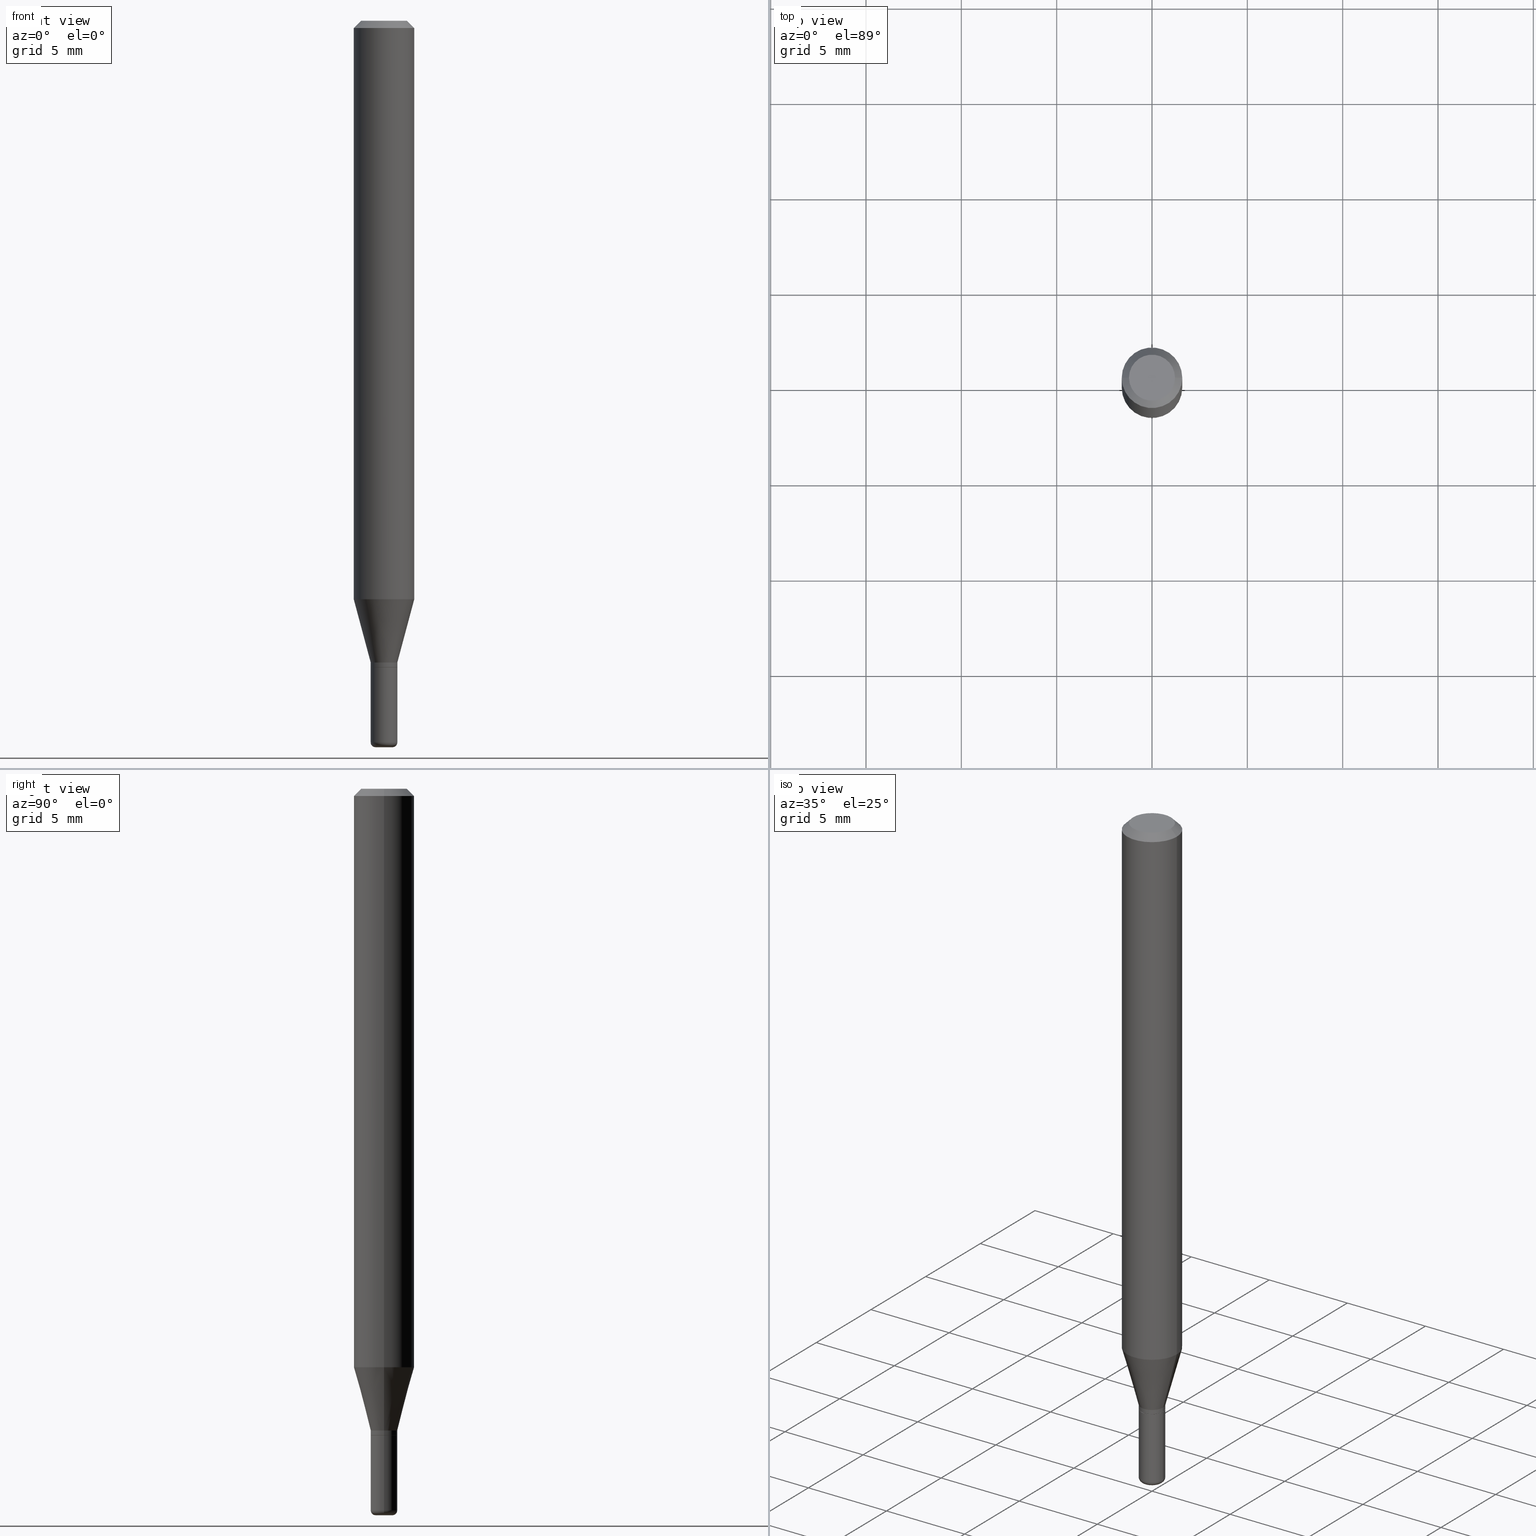
[diagram: canonical four-view strip — front | top / right | iso, engineering-drawing reading convention]
A machine part, canonical four-view strip (front | top / right | iso — engineering-drawing reading convention). The complete STEP part file that produces these views, byte-faithful:
ISO-10303-21;
HEADER;
FILE_DESCRIPTION (( 'STEP AP203' ),
    '1' );
FILE_NAME ('08530.STEP',
    '2024-02-29T19:42:34',
    ( '' ),
    ( '' ),
    'SwSTEP 2.0',
    'SolidWorks 2023',
    '' );
FILE_SCHEMA (( 'CONFIG_CONTROL_DESIGN' ));
ENDSEC;

DATA;
#1 = CIRCLE ( 'NONE', #142, 0.02699999999999996847 ) ;
#2 = CARTESIAN_POINT ( 'NONE',  ( 0.06250000000000000000, -4.811533449433669144E-16, -0.01499999999999970281 ) ) ;
#3 = UNCERTAINTY_MEASURE_WITH_UNIT (LENGTH_MEASURE( 1.000000000000000082E-05 ), #262, 'distance_accuracy_value', 'NONE');
#4 = ADVANCED_FACE ( 'NONE', ( #64 ), #509, .T. ) ;
#5 = DIRECTION ( 'NONE',  ( -2.445468806185136597E-29, 3.491481338843145583E-15, 1.000000000000000000 ) ) ;
#6 = ORIENTED_EDGE ( 'NONE', *, *, #227, .F. ) ;
#7 = DIRECTION ( 'NONE',  ( -2.445468806185136597E-29, 3.491481338843145583E-15, 1.000000000000000000 ) ) ;
#8 = ORIENTED_EDGE ( 'NONE', *, *, #268, .F. ) ;
#9 = DIRECTION ( 'NONE',  ( -2.445468806185136597E-29, 3.491481338843145583E-15, 1.000000000000000000 ) ) ;
#10 = EDGE_CURVE ( 'NONE', #364, #489, #157, .T. ) ;
#11 = CARTESIAN_POINT ( 'NONE',  ( -0.02699999999999996847, -4.466631821526261489E-15, -1.335000000000000187 ) ) ;
#12 = ORIENTED_EDGE ( 'NONE', *, *, #10, .T. ) ;
#13 = DIRECTION ( 'NONE',  ( -2.445468806185136597E-29, 3.491481338843145583E-15, 1.000000000000000000 ) ) ;
#14 = VERTEX_POINT ( 'NONE', #304 ) ;
#15 = CARTESIAN_POINT ( 'NONE',  ( 0.06250000000000000000, -4.606584440064116240E-15, -1.194378221735089340 ) ) ;
#16 = CIRCLE ( 'NONE', #269, 0.06250000000000000000 ) ;
#17 = CARTESIAN_POINT ( 'NONE',  ( 3.643748521215853910E-29, -5.202307194876288105E-15, -1.490000000000000213 ) ) ;
#18 = AXIS2_PLACEMENT_3D ( 'NONE', #370, #264, #417 ) ;
#19 = CYLINDRICAL_SURFACE ( 'NONE', #18, 0.02749999999999996197 ) ;
#20 = ORIENTED_EDGE ( 'NONE', *, *, #365, .T. ) ;
#21 = MANIFOLD_SOLID_BREP ( 'Body-Move/Copy2[1]', #437 ) ;
#22 = DIRECTION ( 'NONE',  ( -2.445468806185136597E-29, 3.491481338843145583E-15, 1.000000000000000000 ) ) ;
#23 = ORIENTED_EDGE ( 'NONE', *, *, #339, .F. ) ;
#24 = CARTESIAN_POINT ( 'NONE',  ( 0.02699999999999996847, -4.849667579653128607E-15, -1.335000000000000187 ) ) ;
#25 = VERTEX_POINT ( 'NONE', #55 ) ;
#26 = AXIS2_PLACEMENT_3D ( 'NONE', #116, #392, #516 ) ;
#27 = ORIENTED_EDGE ( 'NONE', *, *, #484, .T. ) ;
#28 = SECURITY_CLASSIFICATION_LEVEL ( 'unclassified' ) ;
#29 = DIRECTION ( 'NONE',  ( -1.000000000000000000, 7.105427357600964782E-15, 0.000000000000000000 ) ) ;
#30 = COORDINATED_UNIVERSAL_TIME_OFFSET ( 5, 0, .BEHIND. ) ;
#31 = DIRECTION ( 'NONE',  ( 1.000000000000000000, -6.982962677686265922E-15, 4.876176775795935793E-29 ) ) ;
#32 = AXIS2_PLACEMENT_3D ( 'NONE', #38, #114, #467 ) ;
#33 = APPROVAL_PERSON_ORGANIZATION ( #110, #261, #390 ) ;
#34 = AXIS2_PLACEMENT_3D ( 'NONE', #302, #93, #251 ) ;
#35 = COORDINATED_UNIVERSAL_TIME_OFFSET ( 5, 0, .BEHIND. ) ;
#36 = CARTESIAN_POINT ( 'NONE',  ( 3.668203209277632395E-31, -5.237222008264614861E-17, -0.01499999999999970281 ) ) ;
#37 = PERSON_AND_ORGANIZATION ( #497, #420 ) ;
#38 = CARTESIAN_POINT ( 'NONE',  ( 3.240246168195306775E-29, -4.626212773967169051E-15, -1.325000000000000178 ) ) ;
#39 = DIRECTION ( 'NONE',  ( 2.445468806185136597E-29, -3.491481338843145583E-15, -1.000000000000000000 ) ) ;
#40 = ADVANCED_FACE ( 'NONE', ( #214 ), #446, .T. ) ;
#41 = CARTESIAN_POINT ( 'NONE',  ( -0.06250000000000000000, 4.440892098500626162E-16, -3.074334431409316114E-30 ) ) ;
#42 = EDGE_CURVE ( 'NONE', #101, #175, #248, .T. ) ;
#43 = ORIENTED_EDGE ( 'NONE', *, *, #76, .F. ) ;
#44 = LINE ( 'NONE', #2, #313 ) ;
#45 = EDGE_LOOP ( 'NONE', ( #447, #129, #27, #491 ) ) ;
#46 = CARTESIAN_POINT ( 'NONE',  ( 3.240246168195306775E-29, -4.626212773967169051E-15, -1.325000000000000178 ) ) ;
#47 = ORIENTED_EDGE ( 'NONE', *, *, #267, .T. ) ;
#48 = AXIS2_PLACEMENT_3D ( 'NONE', #75, #152, #391 ) ;
#49 = VECTOR ( 'NONE', #438, 39.37007874015748854 ) ;
#50 = LINE ( 'NONE', #200, #448 ) ;
#51 = ORIENTED_EDGE ( 'NONE', *, *, #433, .T. ) ;
#52 = LINE ( 'NONE', #246, #216 ) ;
#53 = EDGE_LOOP ( 'NONE', ( #330, #343, #415, #296 ) ) ;
#54 =( LENGTH_UNIT ( ) NAMED_UNIT ( * ) SI_UNIT ( $, .METRE. ) );
#55 = CARTESIAN_POINT ( 'NONE',  ( -0.06250000000000000000, -3.726060062858662743E-15, -1.194378221735089340 ) ) ;
#56 = DIRECTION ( 'NONE',  ( -6.982962677686266711E-15, -1.000000000000000000, 3.491481338843145583E-15 ) ) ;
#57 = CIRCLE ( 'NONE', #367, 0.06250000000000000000 ) ;
#58 = CARTESIAN_POINT ( 'NONE',  ( 3.668203209277704895E-29, -5.237222008264718177E-15, -1.500000000000000222 ) ) ;
#59 = AXIS2_PLACEMENT_3D ( 'NONE', #393, #290, #127 ) ;
#60 = DIRECTION ( 'NONE',  ( 1.000000000000000000, -6.982962677686258822E-15, 0.000000000000000000 ) ) ;
#61 = EDGE_LOOP ( 'NONE', ( #80, #165, #172, #201 ) ) ;
#62 = ORIENTED_EDGE ( 'NONE', *, *, #266, .T. ) ;
#63 = CALENDAR_DATE ( 2024, 29, 2 ) ;
#64 = FACE_OUTER_BOUND ( 'NONE', #440, .T. ) ;
#65 = AXIS2_PLACEMENT_3D ( 'NONE', #349, #135, #99 ) ;
#66 = CIRCLE ( 'NONE', #82, 0.04750000000000000749 ) ;
#67 = MECHANICAL_CONTEXT ( 'NONE', #162, 'mechanical' ) ;
#68 = DIRECTION ( 'NONE',  ( -2.445468806185136597E-29, 3.491481338843145583E-15, 1.000000000000000000 ) ) ;
#69 = PERSON_AND_ORGANIZATION ( #497, #420 ) ;
#70 = CARTESIAN_POINT ( 'NONE',  ( 0.01750000000000000167, -5.359423855124228160E-15, -1.500000000000000222 ) ) ;
#71 = FACE_OUTER_BOUND ( 'NONE', #461, .T. ) ;
#72 = CIRCLE ( 'NONE', #375, 0.04750000000000000749 ) ;
#73 = SHAPE_DEFINITION_REPRESENTATION ( #466, #278 ) ;
#74 = LINE ( 'NONE', #518, #133 ) ;
#75 = CARTESIAN_POINT ( 'NONE',  ( 3.240246168195306775E-29, -4.626212773967169051E-15, -1.325000000000000178 ) ) ;
#76 = EDGE_CURVE ( 'NONE', #337, #139, #486, .T. ) ;
#77 = EDGE_CURVE ( 'NONE', #453, #418, #57, .T. ) ;
#78 = ADVANCED_FACE ( 'NONE', ( #184 ), #381, .T. ) ;
#79 = DIRECTION ( 'NONE',  ( -2.445468806185136877E-29, 3.491481338843145188E-15, 1.000000000000000000 ) ) ;
#80 = ORIENTED_EDGE ( 'NONE', *, *, #311, .F. ) ;
#81 = CIRCLE ( 'NONE', #374, 0.02749999999999997238 ) ;
#82 = AXIS2_PLACEMENT_3D ( 'NONE', #211, #346, #414 ) ;
#83 = FACE_OUTER_BOUND ( 'NONE', #495, .T. ) ;
#84 = ORIENTED_EDGE ( 'NONE', *, *, #276, .T. ) ;
#85 = DIRECTION ( 'NONE',  ( -2.445468806185136597E-29, 3.491481338843145583E-15, 1.000000000000000000 ) ) ;
#86 = ADVANCED_FACE ( 'NONE', ( #508 ), #105, .T. ) ;
#87 = ORIENTED_EDGE ( 'NONE', *, *, #455, .F. ) ;
#88 = CARTESIAN_POINT ( 'NONE',  ( 3.643748521215853910E-29, -5.202307194876288105E-15, -1.490000000000000213 ) ) ;
#89 = VERTEX_POINT ( 'NONE', #428 ) ;
#90 = CC_DESIGN_APPROVAL ( #303, ( #185 ) ) ;
#91 = LINE ( 'NONE', #405, #241 ) ;
#92 = EDGE_CURVE ( 'NONE', #418, #453, #189, .T. ) ;
#93 = DIRECTION ( 'NONE',  ( 2.438088387897960049E-29, -3.491481338843145188E-15, -1.000000000000000000 ) ) ;
#94 = EDGE_LOOP ( 'NONE', ( #8, #20, #395, #328 ) ) ;
#95 = ADVANCED_FACE ( 'NONE', ( #71 ), #233, .T. ) ;
#96 = DIRECTION ( 'NONE',  ( 1.000000000000000000, -6.982962677686279332E-15, 0.000000000000000000 ) ) ;
#97 = CARTESIAN_POINT ( 'NONE',  ( 3.264700856257157760E-29, -4.661127587355599122E-15, -1.335000000000000187 ) ) ;
#98 = AXIS2_PLACEMENT_3D ( 'NONE', #36, #505, #236 ) ;
#99 = DIRECTION ( 'NONE',  ( 1.000000000000000000, -6.982962677686254878E-15, 0.000000000000000000 ) ) ;
#100 = CYLINDRICAL_SURFACE ( 'NONE', #158, 0.06250000000000000000 ) ;
#101 = VERTEX_POINT ( 'NONE', #351 ) ;
#102 = ADVANCED_FACE ( 'NONE', ( #315 ), #237, .F. ) ;
#103 = DIRECTION ( 'NONE',  ( 0.7071067811866199593, -2.468850131083015945E-15, 0.7071067811864750752 ) ) ;
#104 = ORIENTED_EDGE ( 'NONE', *, *, #311, .T. ) ;
#105 = CYLINDRICAL_SURFACE ( 'NONE', #196, 0.02749999999999997238 ) ;
#106 = VECTOR ( 'NONE', #366, 39.37007874015748143 ) ;
#107 = CIRCLE ( 'NONE', #431, 0.06250000000000000000 ) ;
#108 = APPROVAL_ROLE ( '' ) ;
#109 = CARTESIAN_POINT ( 'NONE',  ( -0.06250000000000000000, 3.840629472727455270E-16, -0.01499999999999970281 ) ) ;
#110 = PERSON_AND_ORGANIZATION ( #497, #420 ) ;
#111 = DIRECTION ( 'NONE',  ( 1.000000000000000000, -6.982962677686270655E-15, 0.000000000000000000 ) ) ;
#112 = ADVANCED_FACE ( 'NONE', ( #323 ), #358, .T. ) ;
#113 = CALENDAR_DATE ( 2024, 29, 2 ) ;
#114 = DIRECTION ( 'NONE',  ( -2.445468806185136597E-29, 3.491481338843145583E-15, 1.000000000000000000 ) ) ;
#115 = LOCAL_TIME ( 14, 42, 34.00000000000000000, #155 ) ;
#116 = CARTESIAN_POINT ( 'NONE',  ( 3.668203209277632395E-31, -5.237222008264614861E-17, -0.01499999999999970281 ) ) ;
#117 = EDGE_CURVE ( 'NONE', #25, #499, #16, .T. ) ;
#118 = DIRECTION ( 'NONE',  ( 1.000000000000000000, -6.982962677686258822E-15, 0.000000000000000000 ) ) ;
#119 = EDGE_CURVE ( 'NONE', #308, #453, #228, .T. ) ;
#120 = CARTESIAN_POINT ( 'NONE',  ( 3.264700856257157760E-29, -4.661127587355599122E-15, -1.335000000000000187 ) ) ;
#121 = ORIENTED_EDGE ( 'NONE', *, *, #76, .T. ) ;
#122 = CLOSED_SHELL ( 'NONE', ( #293, #112, #150, #316, #4, #78, #449, #128, #514, #207, #373, #469 ) ) ;
#123 = LOCAL_TIME ( 14, 42, 34.00000000000000000, #35 ) ;
#124 = EDGE_CURVE ( 'NONE', #101, #89, #457, .T. ) ;
#125 = DIRECTION ( 'NONE',  ( 1.000000000000000000, -6.982962677686266711E-15, 4.876176775795935793E-29 ) ) ;
#126 = EDGE_LOOP ( 'NONE', ( #408, #43 ) ) ;
#127 = DIRECTION ( 'NONE',  ( 1.000000000000000000, -6.982962677686265922E-15, 4.876176775795935793E-29 ) ) ;
#128 = ADVANCED_FACE ( 'NONE', ( #472 ), #255, .T. ) ;
#129 = ORIENTED_EDGE ( 'NONE', *, *, #42, .T. ) ;
#130 = CC_DESIGN_PERSON_AND_ORGANIZATION_ASSIGNMENT ( #321, #186, ( #331 ) ) ;
#131 = DIRECTION ( 'NONE',  ( 1.000000000000000000, -6.982962677686254878E-15, 0.000000000000000000 ) ) ;
#132 = ORIENTED_EDGE ( 'NONE', *, *, #163, .T. ) ;
#133 = VECTOR ( 'NONE', #425, 39.37007874015748854 ) ;
#134 = DIRECTION ( 'NONE',  ( 1.000000000000000000, -6.982962677686266711E-15, 4.876176775795935793E-29 ) ) ;
#135 = DIRECTION ( 'NONE',  ( -2.445468806185136597E-29, 3.491481338843145583E-15, 1.000000000000000000 ) ) ;
#136 = EDGE_CURVE ( 'NONE', #204, #499, #74, .T. ) ;
#137 =( NAMED_UNIT ( * ) PLANE_ANGLE_UNIT ( ) SI_UNIT ( $, .RADIAN. ) );
#138 = ORIENTED_EDGE ( 'NONE', *, *, #267, .F. ) ;
#139 = VERTEX_POINT ( 'NONE', #354 ) ;
#140 = CARTESIAN_POINT ( 'NONE',  ( -0.02750000000000000014, -4.736318138781917467E-15, -1.335000000000000187 ) ) ;
#141 = AXIS2_PLACEMENT_3D ( 'NONE', #477, #432, #29 ) ;
#142 = AXIS2_PLACEMENT_3D ( 'NONE', #97, #13, #501 ) ;
#143 = ORIENTED_EDGE ( 'NONE', *, *, #212, .F. ) ;
#144 = CARTESIAN_POINT ( 'NONE',  ( 3.643748521215853910E-29, -5.202307194876288105E-15, -1.490000000000000213 ) ) ;
#145 = VERTEX_POINT ( 'NONE', #388 ) ;
#146 = FACE_OUTER_BOUND ( 'NONE', #126, .T. ) ;
#147 = DATE_AND_TIME ( #350, #324 ) ;
#148 = CARTESIAN_POINT ( 'NONE',  ( 0.000000000000000000, 0.000000000000000000, 0.000000000000000000 ) ) ;
#149 = EDGE_CURVE ( 'NONE', #14, #364, #193, .T. ) ;
#150 = ADVANCED_FACE ( 'NONE', ( #480 ), #419, .T. ) ;
#151 = PERSON_AND_ORGANIZATION_ROLE ( 'design_owner' ) ;
#152 = DIRECTION ( 'NONE',  ( -2.445468806185136597E-29, 3.491481338843145583E-15, 1.000000000000000000 ) ) ;
#153 = COORDINATED_UNIVERSAL_TIME_OFFSET ( 5, 0, .BEHIND. ) ;
#154 = CARTESIAN_POINT ( 'NONE',  ( 3.264700856257157760E-29, -4.661127587355599122E-15, -1.335000000000000187 ) ) ;
#155 = COORDINATED_UNIVERSAL_TIME_OFFSET ( 5, 0, .BEHIND. ) ;
#156 = DIRECTION ( 'NONE',  ( -2.445468806185136597E-29, 3.491481338843145583E-15, 1.000000000000000000 ) ) ;
#157 = CIRCLE ( 'NONE', #288, 0.02750000000000000014 ) ;
#158 = AXIS2_PLACEMENT_3D ( 'NONE', #171, #22, #134 ) ;
#159 = DIRECTION ( 'NONE',  ( -2.445468806185136597E-29, 3.491481338843145583E-15, 1.000000000000000000 ) ) ;
#160 = DIRECTION ( 'NONE',  ( -0.7071067811866199593, 7.493145998870616062E-15, 0.7071067811864750752 ) ) ;
#161 = ORIENTED_EDGE ( 'NONE', *, *, #276, .F. ) ;
#162 = APPLICATION_CONTEXT ( 'configuration controlled 3d designs of mechanical parts and assemblies' ) ;
#163 = EDGE_CURVE ( 'NONE', #204, #145, #386, .T. ) ;
#164 = CARTESIAN_POINT ( 'NONE',  ( -0.04750000000000000749, 3.578768372314221353E-16, 2.731847993664239060E-16 ) ) ;
#165 = ORIENTED_EDGE ( 'NONE', *, *, #229, .T. ) ;
#166 = LOCAL_TIME ( 14, 42, 34.00000000000000000, #30 ) ;
#167 = LINE ( 'NONE', #443, #49 ) ;
#168 = ORIENTED_EDGE ( 'NONE', *, *, #326, .T. ) ;
#169 = DIRECTION ( 'NONE',  ( 1.000000000000000000, -6.982962677686270655E-15, 0.000000000000000000 ) ) ;
#170 = ORIENTED_EDGE ( 'NONE', *, *, #227, .T. ) ;
#171 = CARTESIAN_POINT ( 'NONE',  ( 0.000000000000000000, 0.000000000000000000, 0.000000000000000000 ) ) ;
#172 = ORIENTED_EDGE ( 'NONE', *, *, #92, .T. ) ;
#173 = AXIS2_PLACEMENT_3D ( 'NONE', #120, #361, #242 ) ;
#174 = LENGTH_MEASURE_WITH_UNIT ( LENGTH_MEASURE( 0.02539999999999999897 ), #54 );
#175 = VERTEX_POINT ( 'NONE', #70 ) ;
#176 = ORIENTED_EDGE ( 'NONE', *, *, #149, .T. ) ;
#177 = CARTESIAN_POINT ( 'NONE',  ( -0.02749999999999996197, 1.953992523340272809E-16, -1.352707149820097254E-30 ) ) ;
#178 = DIRECTION ( 'NONE',  ( -2.445468806185136597E-29, 3.491481338843145583E-15, 1.000000000000000000 ) ) ;
#179 = FACE_OUTER_BOUND ( 'NONE', #285, .T. ) ;
#180 = TOROIDAL_SURFACE ( 'NONE', #225, 0.01750000000000000167, 0.009999999999999946432 ) ;
#181 = ORIENTED_EDGE ( 'NONE', *, *, #266, .F. ) ;
#182 = APPROVAL_STATUS ( 'not_yet_approved' ) ;
#183 = ORIENTED_EDGE ( 'NONE', *, *, #136, .F. ) ;
#184 = FACE_OUTER_BOUND ( 'NONE', #94, .T. ) ;
#185 = PRODUCT_DEFINITION ( 'UNKNOWN', '', #257, #195 ) ;
#186 = PERSON_AND_ORGANIZATION_ROLE ( 'classification_officer' ) ;
#187 = AXIS2_PLACEMENT_3D ( 'NONE', #154, #156, #513 ) ;
#188 = DIRECTION ( 'NONE',  ( -2.438088387897960049E-29, 3.491481338843145188E-15, 1.000000000000000000 ) ) ;
#189 = CIRCLE ( 'NONE', #26, 0.06250000000000000000 ) ;
#190 = CIRCLE ( 'NONE', #479, 0.02749999999999995851 ) ;
#191 = DATE_AND_TIME ( #113, #166 ) ;
#192 = CARTESIAN_POINT ( 'NONE',  ( 3.582686580359766038E-29, -5.359686688179453325E-15, -1.500000000000000222 ) ) ;
#193 = LINE ( 'NONE', #356, #411 ) ;
#194 = DIRECTION ( 'NONE',  ( -2.445468806185136877E-29, 3.491481338843145188E-15, 1.000000000000000000 ) ) ;
#195 = DESIGN_CONTEXT ( 'detailed design', #209, 'design' ) ;
#196 = AXIS2_PLACEMENT_3D ( 'NONE', #148, #271, #474 ) ;
#197 = AXIS2_PLACEMENT_3D ( 'NONE', #292, #286, #125 ) ;
#198 = DIRECTION ( 'NONE',  ( 1.000000000000000000, -6.982962677686251722E-15, 0.000000000000000000 ) ) ;
#199 = ORIENTED_EDGE ( 'NONE', *, *, #476, .T. ) ;
#200 = CARTESIAN_POINT ( 'NONE',  ( 0.02749999999999996197, -1.920314736363720486E-16, 1.340948613343880486E-30 ) ) ;
#201 = ORIENTED_EDGE ( 'NONE', *, *, #119, .F. ) ;
#202 = CC_DESIGN_DATE_AND_TIME_ASSIGNMENT ( #512, #352, ( #185 ) ) ;
#203 = CARTESIAN_POINT ( 'NONE',  ( 3.264700856257157760E-29, -4.661127587355599122E-15, -1.335000000000000187 ) ) ;
#204 = VERTEX_POINT ( 'NONE', #231 ) ;
#205 = AXIS2_PLACEMENT_3D ( 'NONE', #192, #188, #31 ) ;
#206 = CIRCLE ( 'NONE', #289, 0.02749999999999994463 ) ;
#207 = ADVANCED_FACE ( 'NONE', ( #146 ), #283, .F. ) ;
#208 = FACE_OUTER_BOUND ( 'NONE', #291, .T. ) ;
#209 = APPLICATION_CONTEXT ( 'configuration controlled 3d designs of mechanical parts and assemblies' ) ;
#210 = ORIENTED_EDGE ( 'NONE', *, *, #149, .F. ) ;
#211 = CARTESIAN_POINT ( 'NONE',  ( -6.680649051745406845E-45, 9.538196290434862081E-31, 2.731847993664263218E-16 ) ) ;
#212 = EDGE_CURVE ( 'NONE', #499, #418, #383, .T. ) ;
#213 = ORIENTED_EDGE ( 'NONE', *, *, #462, .T. ) ;
#214 = FACE_OUTER_BOUND ( 'NONE', #45, .T. ) ;
#215 = CIRCLE ( 'NONE', #394, 0.02749999999999994463 ) ;
#216 = VECTOR ( 'NONE', #160, 39.37007874015748143 ) ;
#217 = DIRECTION ( 'NONE',  ( -2.445468806185136597E-29, 3.491481338843145583E-15, 1.000000000000000000 ) ) ;
#218 = CARTESIAN_POINT ( 'NONE',  ( 3.264700856257157760E-29, -4.661127587355599122E-15, -1.335000000000000187 ) ) ;
#219 = EDGE_CURVE ( 'NONE', #489, #364, #322, .T. ) ;
#220 = EDGE_LOOP ( 'NONE', ( #170, #226, #138, #252 ) ) ;
#221 = CC_DESIGN_PERSON_AND_ORGANIZATION_ASSIGNMENT ( #37, #427, ( #257 ) ) ;
#222 = DIRECTION ( 'NONE',  ( -2.445468806185136877E-29, 3.491481338843145188E-15, 1.000000000000000000 ) ) ;
#223 = ORIENTED_EDGE ( 'NONE', *, *, #163, .F. ) ;
#224 = APPROVAL_ROLE ( '' ) ;
#225 = AXIS2_PLACEMENT_3D ( 'NONE', #144, #494, #307 ) ;
#226 = ORIENTED_EDGE ( 'NONE', *, *, #124, .T. ) ;
#227 = EDGE_CURVE ( 'NONE', #175, #101, #468, .T. ) ;
#228 = LINE ( 'NONE', #109, #485 ) ;
#229 = EDGE_CURVE ( 'NONE', #404, #418, #44, .T. ) ;
#230 = DIRECTION ( 'NONE',  ( 0.000000000000000000, 0.000000000000000000, 1.000000000000000000 ) ) ;
#231 = CARTESIAN_POINT ( 'NONE',  ( 0.02749999999999995851, -4.818244247603540754E-15, -1.325000000000000178 ) ) ;
#232 = DATE_TIME_ROLE ( 'classification_date' ) ;
#233 = CYLINDRICAL_SURFACE ( 'NONE', #297, 0.02749999999999997238 ) ;
#234 = CC_DESIGN_SECURITY_CLASSIFICATION ( #331, ( #257 ) ) ;
#235 = APPLICATION_PROTOCOL_DEFINITION ( 'international standard', 'config_control_design', 1994, #162 ) ;
#236 = DIRECTION ( 'NONE',  ( -1.000000000000000000, 6.982962677686266711E-15, 0.000000000000000000 ) ) ;
#237 = PLANE ( 'NONE',  #205 ) ;
#238 = LINE ( 'NONE', #41, #270 ) ;
#239 = ORIENTED_EDGE ( 'NONE', *, *, #506, .F. ) ;
#240 = AXIS2_PLACEMENT_3D ( 'NONE', #396, #7, #244 ) ;
#241 = VECTOR ( 'NONE', #79, 39.37007874015748143 ) ;
#242 = DIRECTION ( 'NONE',  ( 1.000000000000000000, -6.982962677686279332E-15, 0.000000000000000000 ) ) ;
#243 = ORIENTED_EDGE ( 'NONE', *, *, #92, .F. ) ;
#244 = DIRECTION ( 'NONE',  ( 1.000000000000000000, -6.982962677686248567E-15, 0.000000000000000000 ) ) ;
#245 = ORIENTED_EDGE ( 'NONE', *, *, #212, .T. ) ;
#246 = CARTESIAN_POINT ( 'NONE',  ( -0.02699999999999996847, -4.469281048700372690E-15, -1.335000000000000187 ) ) ;
#247 = EDGE_LOOP ( 'NONE', ( #265, #504, #245, #347 ) ) ;
#248 = CIRCLE ( 'NONE', #353, 0.01750000000000000167 ) ;
#249 = CC_DESIGN_APPROVAL ( #517, ( #331 ) ) ;
#250 = DIRECTION ( 'NONE',  ( 1.000000000000000000, -6.982962677686269077E-15, 0.000000000000000000 ) ) ;
#251 = DIRECTION ( 'NONE',  ( -1.000000000000000000, 6.982962677686265922E-15, -4.876176775795935793E-29 ) ) ;
#252 = ORIENTED_EDGE ( 'NONE', *, *, #484, .F. ) ;
#253 = CARTESIAN_POINT ( 'NONE',  ( 0.04750000000000000749, -4.035134999187568762E-16, 2.731847993664288856E-16 ) ) ;
#254 = DIRECTION ( 'NONE',  ( -2.445468806185136597E-29, 3.491481338843145583E-15, 1.000000000000000000 ) ) ;
#255 = CONICAL_SURFACE ( 'NONE', #280, 0.06250000000000000000, 0.7853981633974488341 ) ;
#256 = MANIFOLD_SOLID_BREP ( 'Body-Move/Copy2[2]', #122 ) ;
#257 = PRODUCT_DEFINITION_FORMATION_WITH_SPECIFIED_SOURCE ( 'ANY', '', #309, .NOT_KNOWN. ) ;
#258 = LOCAL_TIME ( 14, 42, 34.00000000000000000, #423 ) ;
#259 = DIRECTION ( 'NONE',  ( 1.000000000000000000, -6.982962677686274599E-15, 0.000000000000000000 ) ) ;
#260 = DIRECTION ( 'NONE',  ( 1.000000000000000000, -6.982962677686269077E-15, 0.000000000000000000 ) ) ;
#261 = APPROVAL ( #182, 'UNSPECIFIED' ) ;
#262 =( CONVERSION_BASED_UNIT ( 'INCH', #174 ) LENGTH_UNIT ( ) NAMED_UNIT ( #459 ) );
#263 = ORIENTED_EDGE ( 'NONE', *, *, #268, .T. ) ;
#264 = DIRECTION ( 'NONE',  ( -2.445468806185136597E-29, 3.491481338843145583E-15, 1.000000000000000000 ) ) ;
#265 = ORIENTED_EDGE ( 'NONE', *, *, #398, .F. ) ;
#266 = EDGE_CURVE ( 'NONE', #340, #335, #81, .T. ) ;
#267 = EDGE_CURVE ( 'NONE', #14, #89, #215, .T. ) ;
#268 = EDGE_CURVE ( 'NONE', #145, #25, #167, .T. ) ;
#269 = AXIS2_PLACEMENT_3D ( 'NONE', #281, #68, #111 ) ;
#270 = VECTOR ( 'NONE', #222, 39.37007874015748143 ) ;
#271 = DIRECTION ( 'NONE',  ( -2.445468806185136597E-29, 3.491481338843145583E-15, 1.000000000000000000 ) ) ;
#272 = PERSON_AND_ORGANIZATION_ROLE ( 'creator' ) ;
#273 = ADVANCED_FACE ( 'NONE', ( #363 ), #402, .F. ) ;
#274 = DIRECTION ( 'NONE',  ( -1.000000000000000000, 6.982962677686266711E-15, 0.000000000000000000 ) ) ;
#275 = CALENDAR_DATE ( 2024, 29, 2 ) ;
#276 = EDGE_CURVE ( 'NONE', #340, #204, #50, .T. ) ;
#277 = CARTESIAN_POINT ( 'NONE',  ( 3.668203209277632395E-31, -5.237222008264614861E-17, -0.01499999999999970281 ) ) ;
#278 = ADVANCED_BREP_SHAPE_REPRESENTATION ( '08530', ( #21, #256, #360 ), #488 ) ;
#279 = DATE_AND_TIME ( #478, #115 ) ;
#280 = AXIS2_PLACEMENT_3D ( 'NONE', #277, #39, #274 ) ;
#281 = CARTESIAN_POINT ( 'NONE',  ( 2.920814684040035017E-29, -4.170149272708725360E-15, -1.194378221735089340 ) ) ;
#282 = PERSON_AND_ORGANIZATION ( #497, #420 ) ;
#283 = PLANE ( 'NONE',  #344 ) ;
#284 = DIRECTION ( 'NONE',  ( -2.445468806185136597E-29, 3.491481338843145583E-15, 1.000000000000000000 ) ) ;
#285 = EDGE_LOOP ( 'NONE', ( #371, #413, #84, #300 ) ) ;
#286 = DIRECTION ( 'NONE',  ( -2.445468806185136597E-29, 3.491481338843145583E-15, 1.000000000000000000 ) ) ;
#287 = EDGE_LOOP ( 'NONE', ( #199, #104 ) ) ;
#288 = AXIS2_PLACEMENT_3D ( 'NONE', #451, #301, #96 ) ;
#289 = AXIS2_PLACEMENT_3D ( 'NONE', #454, #217, #60 ) ;
#290 = DIRECTION ( 'NONE',  ( -2.445468806185136597E-29, 3.491481338843145583E-15, 1.000000000000000000 ) ) ;
#291 = EDGE_LOOP ( 'NONE', ( #62, #51, #223, #161 ) ) ;
#292 = CARTESIAN_POINT ( 'NONE',  ( 0.000000000000000000, 0.000000000000000000, 0.000000000000000000 ) ) ;
#293 = ADVANCED_FACE ( 'NONE', ( #208 ), #332, .T. ) ;
#294 = ORIENTED_EDGE ( 'NONE', *, *, #42, .F. ) ;
#295 = DIRECTION ( 'NONE',  ( -2.445468806185136877E-29, 3.491481338843145188E-15, 1.000000000000000000 ) ) ;
#296 = ORIENTED_EDGE ( 'NONE', *, *, #77, .T. ) ;
#297 = AXIS2_PLACEMENT_3D ( 'NONE', #385, #357, #422 ) ;
#298 = AXIS2_PLACEMENT_3D ( 'NONE', #203, #159, #250 ) ;
#299 = FACE_OUTER_BOUND ( 'NONE', #287, .T. ) ;
#300 = ORIENTED_EDGE ( 'NONE', *, *, #365, .F. ) ;
#301 = DIRECTION ( 'NONE',  ( -2.445468806185136597E-29, 3.491481338843145583E-15, 1.000000000000000000 ) ) ;
#302 = CARTESIAN_POINT ( 'NONE',  ( 3.316907271900976589E-16, 0.04750000000000000749, -2.925296391183627249E-17 ) ) ;
#303 = APPROVAL ( #317, 'UNSPECIFIED' ) ;
#304 = CARTESIAN_POINT ( 'NONE',  ( 0.02749999999999994463, -5.394338668512659809E-15, -1.490000000000000213 ) ) ;
#305 = LINE ( 'NONE', #177, #368 ) ;
#306 = DIRECTION ( 'NONE',  ( 1.000000000000000000, -6.982962677686266711E-15, 0.000000000000000000 ) ) ;
#307 = DIRECTION ( 'NONE',  ( 1.000000000000000000, -6.982962677686258033E-15, 4.883557194083110098E-29 ) ) ;
#308 = VERTEX_POINT ( 'NONE', #164 ) ;
#309 = PRODUCT ( '08530', '08530', '', ( #67 ) ) ;
#310 = DIRECTION ( 'NONE',  ( 1.000000000000000000, -6.982962677686265922E-15, 4.876176775795935793E-29 ) ) ;
#311 = EDGE_CURVE ( 'NONE', #404, #308, #72, .T. ) ;
#312 = APPROVAL_DATE_TIME ( #421, #303 ) ;
#313 = VECTOR ( 'NONE', #325, 39.37007874015748143 ) ;
#314 = AXIS2_PLACEMENT_3D ( 'NONE', #409, #56, #259 ) ;
#315 = FACE_OUTER_BOUND ( 'NONE', #493, .T. ) ;
#316 = ADVANCED_FACE ( 'NONE', ( #83 ), #369, .T. ) ;
#317 = APPROVAL_STATUS ( 'not_yet_approved' ) ;
#318 = DIRECTION ( 'NONE',  ( -2.438088387897960049E-29, 3.491481338843145188E-15, 1.000000000000000000 ) ) ;
#319 = PERSON_AND_ORGANIZATION ( #497, #420 ) ;
#320 = DIRECTION ( 'NONE',  ( -0.7071067811865479058, 2.468850131082261005E-15, -0.7071067811865471286 ) ) ;
#321 = PERSON_AND_ORGANIZATION ( #497, #420 ) ;
#322 = CIRCLE ( 'NONE', #173, 0.02750000000000000014 ) ;
#323 = FACE_OUTER_BOUND ( 'NONE', #400, .T. ) ;
#324 = LOCAL_TIME ( 14, 42, 34.00000000000000000, #153 ) ;
#325 = DIRECTION ( 'NONE',  ( 0.7071067811865479058, -7.319954787623257623E-15, -0.7071067811865471286 ) ) ;
#326 = EDGE_CURVE ( 'NONE', #337, #335, #52, .T. ) ;
#327 = CARTESIAN_POINT ( 'NONE',  ( -0.02749999999999997238, -4.463982594352150288E-15, -1.334500000000000242 ) ) ;
#328 = ORIENTED_EDGE ( 'NONE', *, *, #117, .F. ) ;
#329 = DIRECTION ( 'NONE',  ( -1.000000000000000000, 6.982962677686265922E-15, -4.876176775795935793E-29 ) ) ;
#330 = ORIENTED_EDGE ( 'NONE', *, *, #229, .F. ) ;
#331 = SECURITY_CLASSIFICATION ( '', '', #28 ) ;
#332 = CYLINDRICAL_SURFACE ( 'NONE', #59, 0.02749999999999996197 ) ;
#333 = ORIENTED_EDGE ( 'NONE', *, *, #510, .T. ) ;
#334 = CARTESIAN_POINT ( 'NONE',  ( 0.02750000000000000014, -4.853159060991972403E-15, -1.335000000000000187 ) ) ;
#335 = VERTEX_POINT ( 'NONE', #327 ) ;
#336 = CARTESIAN_POINT ( 'NONE',  ( 0.06250000000000000000, -4.888073874380378612E-16, -0.01499999999999970281 ) ) ;
#337 = VERTEX_POINT ( 'NONE', #11 ) ;
#338 = AXIS2_PLACEMENT_3D ( 'NONE', #490, #435, #329 ) ;
#339 = EDGE_CURVE ( 'NONE', #499, #25, #107, .T. ) ;
#340 = VERTEX_POINT ( 'NONE', #399 ) ;
#341 = ORIENTED_EDGE ( 'NONE', *, *, #326, .F. ) ;
#342 = FACE_OUTER_BOUND ( 'NONE', #247, .T. ) ;
#343 = ORIENTED_EDGE ( 'NONE', *, *, #476, .F. ) ;
#344 = AXIS2_PLACEMENT_3D ( 'NONE', #434, #318, #310 ) ;
#345 = APPROVAL_PERSON_ORGANIZATION ( #319, #517, #224 ) ;
#346 = DIRECTION ( 'NONE',  ( -2.445468806185136597E-29, 3.491481338843145583E-15, 1.000000000000000000 ) ) ;
#347 = ORIENTED_EDGE ( 'NONE', *, *, #77, .F. ) ;
#348 = PERSON_AND_ORGANIZATION_ROLE ( 'creator' ) ;
#349 = CARTESIAN_POINT ( 'NONE',  ( 3.240246168195306775E-29, -4.626212773967169051E-15, -1.325000000000000178 ) ) ;
#350 = CALENDAR_DATE ( 2024, 29, 2 ) ;
#351 = CARTESIAN_POINT ( 'NONE',  ( -0.01750000000000000167, -5.059892486024481641E-15, -1.500000000000000222 ) ) ;
#352 = DATE_TIME_ROLE ( 'creation_date' ) ;
#353 = AXIS2_PLACEMENT_3D ( 'NONE', #58, #502, #500 ) ;
#354 = CARTESIAN_POINT ( 'NONE',  ( 0.02699999999999996847, -4.849667579653128607E-15, -1.335000000000000187 ) ) ;
#355 = APPROVAL_DATE_TIME ( #191, #261 ) ;
#356 = CARTESIAN_POINT ( 'NONE',  ( 0.02749999999999997238, -1.920314736363721225E-16, 1.340948613343880837E-30 ) ) ;
#357 = DIRECTION ( 'NONE',  ( -2.445468806185136597E-29, 3.491481338843145583E-15, 1.000000000000000000 ) ) ;
#358 = CONICAL_SURFACE ( 'NONE', #187, 0.02699999999999996847, 0.7853981633975507526 ) ;
#359 = FACE_OUTER_BOUND ( 'NONE', #382, .T. ) ;
#360 = AXIS2_PLACEMENT_3D ( 'NONE', #471, #230, #473 ) ;
#361 = DIRECTION ( 'NONE',  ( -2.445468806185136597E-29, 3.491481338843145583E-15, 1.000000000000000000 ) ) ;
#362 = ORIENTED_EDGE ( 'NONE', *, *, #398, .T. ) ;
#363 = FACE_OUTER_BOUND ( 'NONE', #483, .T. ) ;
#364 = VERTEX_POINT ( 'NONE', #334 ) ;
#365 = EDGE_CURVE ( 'NONE', #145, #204, #190, .T. ) ;
#366 = DIRECTION ( 'NONE',  ( -2.445468806185136877E-29, 3.491481338843145188E-15, 1.000000000000000000 ) ) ;
#367 = AXIS2_PLACEMENT_3D ( 'NONE', #378, #178, #306 ) ;
#368 = VECTOR ( 'NONE', #460, 39.37007874015748143 ) ;
#369 = CYLINDRICAL_SURFACE ( 'NONE', #197, 0.06250000000000000000 ) ;
#370 = CARTESIAN_POINT ( 'NONE',  ( 0.000000000000000000, 0.000000000000000000, 0.000000000000000000 ) ) ;
#371 = ORIENTED_EDGE ( 'NONE', *, *, #433, .F. ) ;
#372 = CARTESIAN_POINT ( 'NONE',  ( 3.263478121854064959E-29, -4.659381846686178407E-15, -1.334500000000000242 ) ) ;
#373 = ADVANCED_FACE ( 'NONE', ( #359 ), #470, .T. ) ;
#374 = AXIS2_PLACEMENT_3D ( 'NONE', #481, #284, #198 ) ;
#375 = AXIS2_PLACEMENT_3D ( 'NONE', #482, #9, #487 ) ;
#376 = ORIENTED_EDGE ( 'NONE', *, *, #10, .F. ) ;
#377 = PLANE ( 'NONE',  #34 ) ;
#378 = CARTESIAN_POINT ( 'NONE',  ( 3.668203209277632395E-31, -5.237222008264614861E-17, -0.01499999999999970281 ) ) ;
#379 = FACE_OUTER_BOUND ( 'NONE', #220, .T. ) ;
#380 = ORIENTED_EDGE ( 'NONE', *, *, #389, .F. ) ;
#381 = CONICAL_SURFACE ( 'NONE', #32, 0.02749999999999995851, 0.2617993877991494078 ) ;
#382 = EDGE_LOOP ( 'NONE', ( #341, #121, #465, #239 ) ) ;
#383 = LINE ( 'NONE', #445, #106 ) ;
#384 = APPLICATION_PROTOCOL_DEFINITION ( 'international standard', 'config_control_design', 1994, #209 ) ;
#385 = CARTESIAN_POINT ( 'NONE',  ( 0.000000000000000000, 0.000000000000000000, 0.000000000000000000 ) ) ;
#386 = CIRCLE ( 'NONE', #48, 0.02749999999999995851 ) ;
#387 = CIRCLE ( 'NONE', #511, 0.02749999999999997238 ) ;
#388 = CARTESIAN_POINT ( 'NONE',  ( -0.02749999999999995851, -4.078436792245901838E-15, -1.325000000000000178 ) ) ;
#389 = EDGE_CURVE ( 'NONE', #89, #489, #91, .T. ) ;
#390 = APPROVAL_ROLE ( '' ) ;
#391 = DIRECTION ( 'NONE',  ( 1.000000000000000000, -6.982962677686254878E-15, 0.000000000000000000 ) ) ;
#392 = DIRECTION ( 'NONE',  ( -2.445468806185136597E-29, 3.491481338843145583E-15, 1.000000000000000000 ) ) ;
#393 = CARTESIAN_POINT ( 'NONE',  ( 0.000000000000000000, 0.000000000000000000, 0.000000000000000000 ) ) ;
#394 = AXIS2_PLACEMENT_3D ( 'NONE', #88, #5, #118 ) ;
#395 = ORIENTED_EDGE ( 'NONE', *, *, #136, .T. ) ;
#396 = CARTESIAN_POINT ( 'NONE',  ( 3.668203209277704895E-29, -5.237222008264718177E-15, -1.500000000000000222 ) ) ;
#397 = EDGE_LOOP ( 'NONE', ( #47, #444, #376, #210 ) ) ;
#398 = EDGE_CURVE ( 'NONE', #25, #453, #238, .T. ) ;
#399 = CARTESIAN_POINT ( 'NONE',  ( 0.02749999999999997238, -4.851413320322550900E-15, -1.334500000000000242 ) ) ;
#400 = EDGE_LOOP ( 'NONE', ( #213, #168, #181, #87 ) ) ;
#401 = CC_DESIGN_PERSON_AND_ORGANIZATION_ASSIGNMENT ( #507, #348, ( #257 ) ) ;
#402 = PLANE ( 'NONE',  #338 ) ;
#403 = AXIS2_PLACEMENT_3D ( 'NONE', #17, #254, #410 ) ;
#404 = VERTEX_POINT ( 'NONE', #253 ) ;
#405 = CARTESIAN_POINT ( 'NONE',  ( -0.02749999999999997238, 1.953992523340273549E-16, -1.352707149820097605E-30 ) ) ;
#406 = ORIENTED_EDGE ( 'NONE', *, *, #219, .F. ) ;
#407 = CC_DESIGN_PERSON_AND_ORGANIZATION_ASSIGNMENT ( #282, #151, ( #309 ) ) ;
#408 = ORIENTED_EDGE ( 'NONE', *, *, #462, .F. ) ;
#409 = CARTESIAN_POINT ( 'NONE',  ( 0.01750000000000000167, -5.324509041735797299E-15, -1.490000000000000213 ) ) ;
#410 = DIRECTION ( 'NONE',  ( 1.000000000000000000, -6.982962677686258033E-15, 4.883557194083110098E-29 ) ) ;
#411 = VECTOR ( 'NONE', #194, 39.37007874015748143 ) ;
#412 = APPROVAL_PERSON_ORGANIZATION ( #515, #303, #108 ) ;
#413 = ORIENTED_EDGE ( 'NONE', *, *, #506, .T. ) ;
#414 = DIRECTION ( 'NONE',  ( 1.000000000000000000, -6.982962677686266711E-15, 4.852736867747365086E-29 ) ) ;
#415 = ORIENTED_EDGE ( 'NONE', *, *, #119, .T. ) ;
#416 = PRODUCT_RELATED_PRODUCT_CATEGORY ( 'detail', '', ( #309 ) ) ;
#417 = DIRECTION ( 'NONE',  ( 1.000000000000000000, -6.982962677686265922E-15, 4.876176775795935793E-29 ) ) ;
#418 = VERTEX_POINT ( 'NONE', #336 ) ;
#419 = CONICAL_SURFACE ( 'NONE', #98, 0.06250000000000000000, 0.7853981633974488341 ) ;
#420 = ORGANIZATION ( 'UNSPECIFIED', 'UNSPECIFIED', '' ) ;
#421 = DATE_AND_TIME ( #275, #123 ) ;
#422 = DIRECTION ( 'NONE',  ( 1.000000000000000000, -6.982962677686265922E-15, 4.876176775795935232E-29 ) ) ;
#423 = COORDINATED_UNIVERSAL_TIME_OFFSET ( 5, 0, .BEHIND. ) ;
#424 = ADVANCED_FACE ( 'NONE', ( #379 ), #180, .T. ) ;
#425 = DIRECTION ( 'NONE',  ( 0.2588190451025206840, 1.565188264969626504E-15, 0.9659258262890682012 ) ) ;
#426 = CC_DESIGN_PERSON_AND_ORGANIZATION_ASSIGNMENT ( #69, #272, ( #185 ) ) ;
#427 = PERSON_AND_ORGANIZATION_ROLE ( 'design_supplier' ) ;
#428 = CARTESIAN_POINT ( 'NONE',  ( -0.02749999999999994463, -4.736318138781917467E-15, -1.490000000000000213 ) ) ;
#429 = AXIS2_PLACEMENT_3D ( 'NONE', #218, #456, #260 ) ;
#430 = APPROVAL_DATE_TIME ( #279, #517 ) ;
#431 = AXIS2_PLACEMENT_3D ( 'NONE', #441, #85, #169 ) ;
#432 = DIRECTION ( 'NONE',  ( 7.105427357601001859E-15, 1.000000000000000000, -3.491481338843145583E-15 ) ) ;
#433 = EDGE_CURVE ( 'NONE', #335, #145, #305, .T. ) ;
#434 = CARTESIAN_POINT ( 'NONE',  ( 3.264700856257157760E-29, -4.661127587355599122E-15, -1.335000000000000187 ) ) ;
#435 = DIRECTION ( 'NONE',  ( 2.438088387897960049E-29, -3.491481338843145188E-15, -1.000000000000000000 ) ) ;
#436 = ORIENTED_EDGE ( 'NONE', *, *, #219, .T. ) ;
#437 = CLOSED_SHELL ( 'NONE', ( #424, #86, #273, #95, #40, #102 ) ) ;
#438 = DIRECTION ( 'NONE',  ( -0.2588190451025206840, 5.211531920934545520E-15, 0.9659258262890682012 ) ) ;
#439 = VECTOR ( 'NONE', #103, 39.37007874015748143 ) ;
#440 = EDGE_LOOP ( 'NONE', ( #132, #263, #23, #183 ) ) ;
#441 = CARTESIAN_POINT ( 'NONE',  ( 2.920814684040035017E-29, -4.170149272708725360E-15, -1.194378221735089340 ) ) ;
#442 = ORIENTED_EDGE ( 'NONE', *, *, #339, .T. ) ;
#443 = CARTESIAN_POINT ( 'NONE',  ( -0.02749999999999995851, -4.430813521633141720E-15, -1.325000000000000178 ) ) ;
#444 = ORIENTED_EDGE ( 'NONE', *, *, #389, .T. ) ;
#445 = CARTESIAN_POINT ( 'NONE',  ( 0.06250000000000000000, -4.364351673553916694E-16, 3.047610484872459871E-30 ) ) ;
#446 = TOROIDAL_SURFACE ( 'NONE', #403, 0.01750000000000000167, 0.009999999999999946432 ) ;
#447 = ORIENTED_EDGE ( 'NONE', *, *, #124, .F. ) ;
#448 = VECTOR ( 'NONE', #295, 39.37007874015748143 ) ;
#449 = ADVANCED_FACE ( 'NONE', ( #342 ), #100, .T. ) ;
#450 = DIRECTION ( 'NONE',  ( -2.445468806185136597E-29, 3.491481338843145583E-15, 1.000000000000000000 ) ) ;
#451 = CARTESIAN_POINT ( 'NONE',  ( 3.264700856257157760E-29, -4.661127587355599122E-15, -1.335000000000000187 ) ) ;
#452 =( NAMED_UNIT ( * ) SI_UNIT ( $, .STERADIAN. ) SOLID_ANGLE_UNIT ( ) );
#453 = VERTEX_POINT ( 'NONE', #498 ) ;
#454 = CARTESIAN_POINT ( 'NONE',  ( 3.643748521215853910E-29, -5.202307194876288105E-15, -1.490000000000000213 ) ) ;
#455 = EDGE_CURVE ( 'NONE', #139, #340, #464, .T. ) ;
#456 = DIRECTION ( 'NONE',  ( -2.445468806185136597E-29, 3.491481338843145583E-15, 1.000000000000000000 ) ) ;
#457 = CIRCLE ( 'NONE', #141, 0.009999999999999944697 ) ;
#458 = CC_DESIGN_APPROVAL ( #261, ( #257 ) ) ;
#459 = DIMENSIONAL_EXPONENTS ( 1.000000000000000000, 0.000000000000000000, 0.000000000000000000, 0.000000000000000000, 0.000000000000000000, 0.000000000000000000, 0.000000000000000000 ) ;
#460 = DIRECTION ( 'NONE',  ( -2.445468806185136877E-29, 3.491481338843145188E-15, 1.000000000000000000 ) ) ;
#461 = EDGE_LOOP ( 'NONE', ( #380, #333, #176, #406 ) ) ;
#462 = EDGE_CURVE ( 'NONE', #139, #337, #1, .T. ) ;
#463 = CC_DESIGN_DATE_AND_TIME_ASSIGNMENT ( #147, #232, ( #331 ) ) ;
#464 = LINE ( 'NONE', #24, #439 ) ;
#465 = ORIENTED_EDGE ( 'NONE', *, *, #455, .T. ) ;
#466 = PRODUCT_DEFINITION_SHAPE ( 'NONE', 'NONE',  #185 ) ;
#467 = DIRECTION ( 'NONE',  ( 1.000000000000000000, -6.982962677686254878E-15, 0.000000000000000000 ) ) ;
#468 = CIRCLE ( 'NONE', #240, 0.01750000000000000167 ) ;
#469 = ADVANCED_FACE ( 'NONE', ( #179 ), #19, .T. ) ;
#470 = CONICAL_SURFACE ( 'NONE', #298, 0.02699999999999996847, 0.7853981633975507526 ) ;
#471 = CARTESIAN_POINT ( 'NONE',  ( 0.000000000000000000, 0.000000000000000000, 0.000000000000000000 ) ) ;
#472 = FACE_OUTER_BOUND ( 'NONE', #53, .T. ) ;
#473 = DIRECTION ( 'NONE',  ( 1.000000000000000000, 0.000000000000000000, 0.000000000000000000 ) ) ;
#474 = DIRECTION ( 'NONE',  ( 1.000000000000000000, -6.982962677686265922E-15, 4.876176775795935232E-29 ) ) ;
#475 = APPROVAL_STATUS ( 'not_yet_approved' ) ;
#476 = EDGE_CURVE ( 'NONE', #308, #404, #66, .T. ) ;
#477 = CARTESIAN_POINT ( 'NONE',  ( -0.01750000000000000167, -5.077962216118270068E-15, -1.490000000000000213 ) ) ;
#478 = CALENDAR_DATE ( 2024, 29, 2 ) ;
#479 = AXIS2_PLACEMENT_3D ( 'NONE', #46, #492, #131 ) ;
#480 = FACE_OUTER_BOUND ( 'NONE', #61, .T. ) ;
#481 = CARTESIAN_POINT ( 'NONE',  ( 3.263478121854064959E-29, -4.659381846686178407E-15, -1.334500000000000242 ) ) ;
#482 = CARTESIAN_POINT ( 'NONE',  ( -6.680649051745406845E-45, 9.538196290434862081E-31, 2.731847993664263218E-16 ) ) ;
#483 = EDGE_LOOP ( 'NONE', ( #12, #436 ) ) ;
#484 = EDGE_CURVE ( 'NONE', #175, #14, #496, .T. ) ;
#485 = VECTOR ( 'NONE', #320, 39.37007874015748143 ) ;
#486 = CIRCLE ( 'NONE', #429, 0.02699999999999996847 ) ;
#487 = DIRECTION ( 'NONE',  ( 1.000000000000000000, -6.982962677686266711E-15, 4.852736867747365086E-29 ) ) ;
#488 =( GEOMETRIC_REPRESENTATION_CONTEXT ( 3 ) GLOBAL_UNCERTAINTY_ASSIGNED_CONTEXT ( ( #3 ) ) GLOBAL_UNIT_ASSIGNED_CONTEXT ( ( #262, #137, #452 ) ) REPRESENTATION_CONTEXT ( 'NONE', 'WORKASPACE' ) );
#489 = VERTEX_POINT ( 'NONE', #140 ) ;
#490 = CARTESIAN_POINT ( 'NONE',  ( 1.920314736364049589E-16, 0.02749999999999534067, -1.335000000000000187 ) ) ;
#491 = ORIENTED_EDGE ( 'NONE', *, *, #510, .F. ) ;
#492 = DIRECTION ( 'NONE',  ( -2.445468806185136597E-29, 3.491481338843145583E-15, 1.000000000000000000 ) ) ;
#493 = EDGE_LOOP ( 'NONE', ( #6, #294 ) ) ;
#494 = DIRECTION ( 'NONE',  ( -2.445468806185136597E-29, 3.491481338843145583E-15, 1.000000000000000000 ) ) ;
#495 = EDGE_LOOP ( 'NONE', ( #442, #362, #243, #143 ) ) ;
#496 = CIRCLE ( 'NONE', #314, 0.009999999999999944697 ) ;
#497 = PERSON ( 'UNSPECIFIED', 'UNSPECIFIED', 'UNSPECIFIED', ('UNSPECIFIED'), ('UNSPECIFIED'), ('UNSPECIFIED') ) ;
#498 = CARTESIAN_POINT ( 'NONE',  ( -0.06250000000000000000, -1.667171536545623209E-15, -0.01499999999999970281 ) ) ;
#499 = VERTEX_POINT ( 'NONE', #15 ) ;
#500 = DIRECTION ( 'NONE',  ( 1.000000000000000000, -6.982962677686248567E-15, 0.000000000000000000 ) ) ;
#501 = DIRECTION ( 'NONE',  ( 1.000000000000000000, -6.982962677686269077E-15, 0.000000000000000000 ) ) ;
#502 = DIRECTION ( 'NONE',  ( -2.445468806185136597E-29, 3.491481338843145583E-15, 1.000000000000000000 ) ) ;
#503 = DIRECTION ( 'NONE',  ( 1.000000000000000000, -6.982962677686251722E-15, 0.000000000000000000 ) ) ;
#504 = ORIENTED_EDGE ( 'NONE', *, *, #117, .T. ) ;
#505 = DIRECTION ( 'NONE',  ( 2.445468806185136597E-29, -3.491481338843145583E-15, -1.000000000000000000 ) ) ;
#506 = EDGE_CURVE ( 'NONE', #335, #340, #387, .T. ) ;
#507 = PERSON_AND_ORGANIZATION ( #497, #420 ) ;
#508 = FACE_OUTER_BOUND ( 'NONE', #397, .T. ) ;
#509 = CONICAL_SURFACE ( 'NONE', #65, 0.02749999999999995851, 0.2617993877991494078 ) ;
#510 = EDGE_CURVE ( 'NONE', #89, #14, #206, .T. ) ;
#511 = AXIS2_PLACEMENT_3D ( 'NONE', #372, #450, #503 ) ;
#512 = DATE_AND_TIME ( #63, #258 ) ;
#513 = DIRECTION ( 'NONE',  ( 1.000000000000000000, -6.982962677686269077E-15, 0.000000000000000000 ) ) ;
#514 = ADVANCED_FACE ( 'NONE', ( #299 ), #377, .F. ) ;
#515 = PERSON_AND_ORGANIZATION ( #497, #420 ) ;
#516 = DIRECTION ( 'NONE',  ( 1.000000000000000000, -6.982962677686266711E-15, 0.000000000000000000 ) ) ;
#517 = APPROVAL ( #475, 'UNSPECIFIED' ) ;
#518 = CARTESIAN_POINT ( 'NONE',  ( 0.02749999999999995851, -4.818244247603540754E-15, -1.325000000000000178 ) ) ;
ENDSEC;
END-ISO-10303-21;
